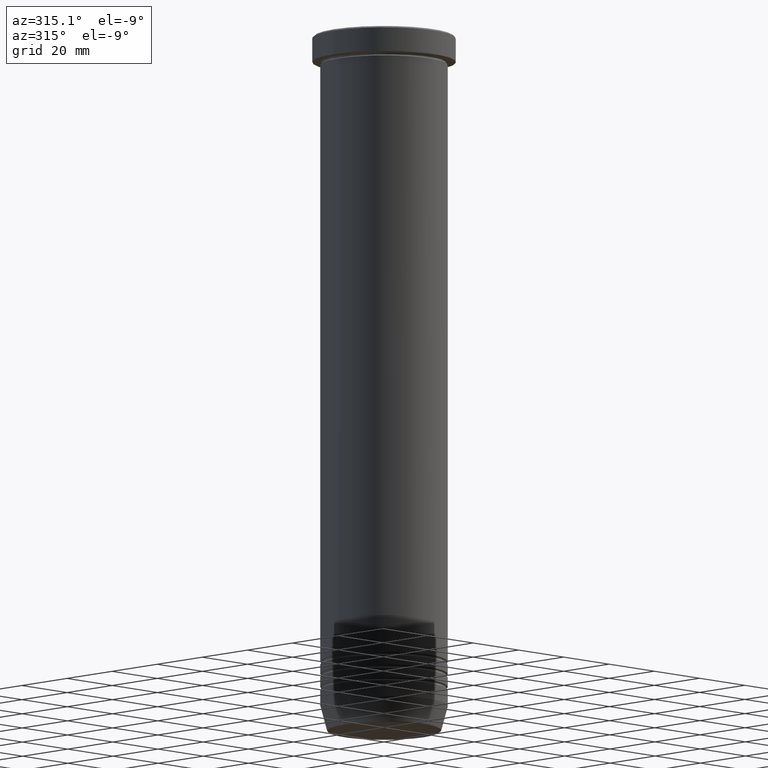
[diagram: clean part render]
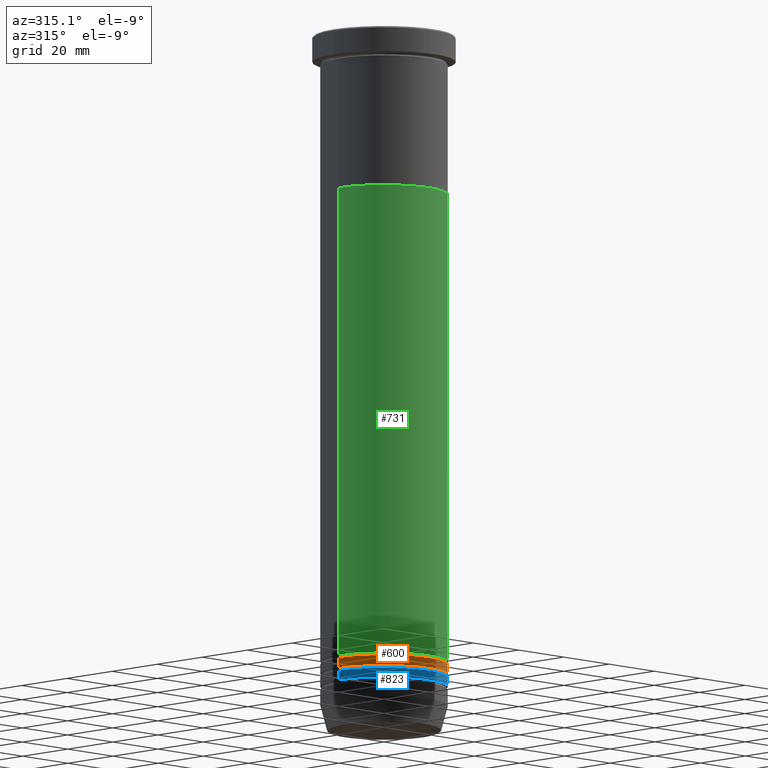
[diagram: same view with three faces highlighted in distinct colors, each labeled with its STEP entity id]
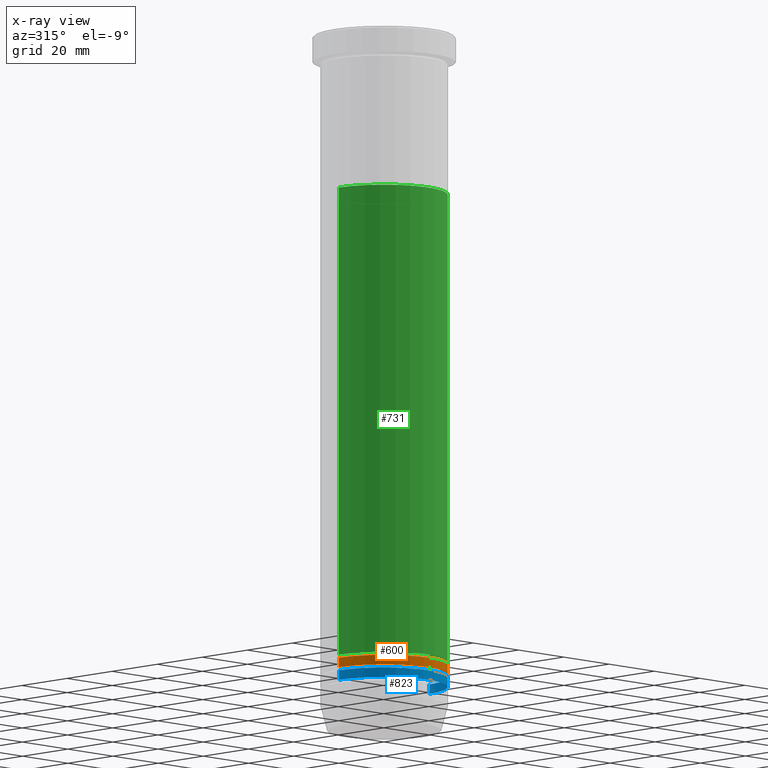
[diagram: x-ray of the same camera — body ghosted, the three highlighted faces saturated]
A machine part, auxiliary view with three faces highlighted in distinct colors.
The next image is the same camera in x-ray (body ghosted, the three faces saturated) — at least one of them is partly hidden behind the body in this view.
Their STEP definitions:

[orange] entity #600 — the highlighted cylindrical surface (partial cylindrical patch) has radius 20 mm, axis along (-0, -0, 1).
#57 = DIRECTION ( 'NONE',  ( -0.000000000000000000, -0.000000000000000000, 1.000000000000000000 ) ) ;
#67 = CARTESIAN_POINT ( 'NONE',  ( 19.99999999999999645, 0.000000000000000000, 0.000000000000000000 ) ) ;
#69 = EDGE_CURVE ( 'NONE', #268, #497, #807, .T. ) ;
#111 = ORIENTED_EDGE ( 'NONE', *, *, #914, .F. ) ;
#113 = CIRCLE ( 'NONE', #311, 20.00000000000000000 ) ;
#119 = DIRECTION ( 'NONE',  ( -0.000000000000000000, -0.000000000000000000, 1.000000000000000000 ) ) ;
#133 = EDGE_CURVE ( 'NONE', #969, #668, #113, .T. ) ;
#161 = CARTESIAN_POINT ( 'NONE',  ( 20.00000000000000000, 0.000000000000000000, -199.0000000000000000 ) ) ;
#175 = CARTESIAN_POINT ( 'NONE',  ( 0.000000000000000000, 0.000000000000000000, -201.9999999999999716 ) ) ;
#221 = FACE_OUTER_BOUND ( 'NONE', #540, .T. ) ;
#248 = ORIENTED_EDGE ( 'NONE', *, *, #133, .F. ) ;
#268 = VERTEX_POINT ( 'NONE', #702 ) ;
#290 = CARTESIAN_POINT ( 'NONE',  ( 0.000000000000000000, 0.000000000000000000, 0.000000000000000000 ) ) ;
#311 = AXIS2_PLACEMENT_3D ( 'NONE', #1017, #119, #512 ) ;
#367 = AXIS2_PLACEMENT_3D ( 'NONE', #290, #544, #452 ) ;
#411 = CARTESIAN_POINT ( 'NONE',  ( 19.99999999999999645, 0.000000000000000000, -201.9999999999999716 ) ) ;
#452 = DIRECTION ( 'NONE',  ( 1.000000000000000000, 0.000000000000000000, 0.000000000000000000 ) ) ;
#472 = VECTOR ( 'NONE', #57, 1000.000000000000000 ) ;
#497 = VERTEX_POINT ( 'NONE', #411 ) ;
#500 = DIRECTION ( 'NONE',  ( -0.000000000000000000, -0.000000000000000000, 1.000000000000000000 ) ) ;
#501 = LINE ( 'NONE', #1001, #669 ) ;
#512 = DIRECTION ( 'NONE',  ( 1.000000000000000000, 0.000000000000000000, 0.000000000000000000 ) ) ;
#534 = AXIS2_PLACEMENT_3D ( 'NONE', #175, #500, #844 ) ;
#540 = EDGE_LOOP ( 'NONE', ( #111, #780, #778, #248 ) ) ;
#544 = DIRECTION ( 'NONE',  ( -0.000000000000000000, -0.000000000000000000, 1.000000000000000000 ) ) ;
#600 = ADVANCED_FACE ( 'NONE', ( #221 ), #617, .T. ) ;
#617 = CYLINDRICAL_SURFACE ( 'NONE', #367, 19.99999999999999645 ) ;
#668 = VERTEX_POINT ( 'NONE', #161 ) ;
#669 = VECTOR ( 'NONE', #846, 1000.000000000000000 ) ;
#702 = CARTESIAN_POINT ( 'NONE',  ( -19.99999999999999645, 2.449293598294706119E-15, -201.9999999999999716 ) ) ;
#707 = CARTESIAN_POINT ( 'NONE',  ( -20.00000000000000000, 2.449293598294706513E-15, -199.0000000000000000 ) ) ;
#778 = ORIENTED_EDGE ( 'NONE', *, *, #957, .T. ) ;
#780 = ORIENTED_EDGE ( 'NONE', *, *, #69, .T. ) ;
#807 = CIRCLE ( 'NONE', #534, 19.99999999999999645 ) ;
#815 = LINE ( 'NONE', #67, #472 ) ;
#844 = DIRECTION ( 'NONE',  ( 1.000000000000000000, 0.000000000000000000, 0.000000000000000000 ) ) ;
#846 = DIRECTION ( 'NONE',  ( -0.000000000000000000, -0.000000000000000000, 1.000000000000000000 ) ) ;
#914 = EDGE_CURVE ( 'NONE', #268, #969, #501, .T. ) ;
#957 = EDGE_CURVE ( 'NONE', #497, #668, #815, .T. ) ;
#969 = VERTEX_POINT ( 'NONE', #707 ) ;
#1001 = CARTESIAN_POINT ( 'NONE',  ( -19.99999999999999645, 2.449293598294706119E-15, 0.000000000000000000 ) ) ;
#1017 = CARTESIAN_POINT ( 'NONE',  ( 0.000000000000000000, 0.000000000000000000, -199.0000000000000000 ) ) ;

[blue] entity #823 — the highlighted cylindrical surface (partial cylindrical patch) has radius 20 mm, axis along (-0, -0, 1).
#3 = VERTEX_POINT ( 'NONE', #493 ) ;
#7 = FACE_OUTER_BOUND ( 'NONE', #415, .T. ) ;
#23 = ORIENTED_EDGE ( 'NONE', *, *, #359, .F. ) ;
#25 = EDGE_CURVE ( 'NONE', #3, #899, #1000, .T. ) ;
#95 = DIRECTION ( 'NONE',  ( -0.000000000000000000, -0.000000000000000000, 1.000000000000000000 ) ) ;
#200 = CIRCLE ( 'NONE', #812, 20.00000000000000000 ) ;
#236 = DIRECTION ( 'NONE',  ( -0.000000000000000000, -0.000000000000000000, 1.000000000000000000 ) ) ;
#244 = AXIS2_PLACEMENT_3D ( 'NONE', #341, #236, #247 ) ;
#247 = DIRECTION ( 'NONE',  ( 1.000000000000000000, 0.000000000000000000, 0.000000000000000000 ) ) ;
#271 = DIRECTION ( 'NONE',  ( 1.000000000000000000, 0.000000000000000000, 0.000000000000000000 ) ) ;
#300 = CARTESIAN_POINT ( 'NONE',  ( -19.99999999999999645, 2.449293598294706119E-15, 0.000000000000000000 ) ) ;
#309 = DIRECTION ( 'NONE',  ( -0.000000000000000000, -0.000000000000000000, 1.000000000000000000 ) ) ;
#333 = AXIS2_PLACEMENT_3D ( 'NONE', #532, #368, #271 ) ;
#341 = CARTESIAN_POINT ( 'NONE',  ( 0.000000000000000000, 0.000000000000000000, 0.000000000000000000 ) ) ;
#359 = EDGE_CURVE ( 'NONE', #982, #917, #706, .T. ) ;
#368 = DIRECTION ( 'NONE',  ( -0.000000000000000000, -0.000000000000000000, 1.000000000000000000 ) ) ;
#383 = CARTESIAN_POINT ( 'NONE',  ( -19.99999999999999289, 2.449293598294705724E-15, -206.0000000000000284 ) ) ;
#415 = EDGE_LOOP ( 'NONE', ( #23, #683, #639, #926 ) ) ;
#493 = CARTESIAN_POINT ( 'NONE',  ( 19.99999999999999289, 0.000000000000000000, -206.0000000000000284 ) ) ;
#532 = CARTESIAN_POINT ( 'NONE',  ( 0.000000000000000000, 0.000000000000000000, -206.0000000000000284 ) ) ;
#564 = CARTESIAN_POINT ( 'NONE',  ( 20.00000000000000000, 0.000000000000000000, -203.0000000000000000 ) ) ;
#578 = CYLINDRICAL_SURFACE ( 'NONE', #244, 19.99999999999999645 ) ;
#639 = ORIENTED_EDGE ( 'NONE', *, *, #25, .T. ) ;
#665 = VECTOR ( 'NONE', #953, 1000.000000000000000 ) ;
#683 = ORIENTED_EDGE ( 'NONE', *, *, #940, .T. ) ;
#706 = LINE ( 'NONE', #300, #665 ) ;
#810 = CIRCLE ( 'NONE', #333, 19.99999999999999289 ) ;
#812 = AXIS2_PLACEMENT_3D ( 'NONE', #893, #309, #1045 ) ;
#823 = ADVANCED_FACE ( 'NONE', ( #7 ), #578, .T. ) ;
#893 = CARTESIAN_POINT ( 'NONE',  ( 0.000000000000000000, 0.000000000000000000, -203.0000000000000000 ) ) ;
#899 = VERTEX_POINT ( 'NONE', #564 ) ;
#915 = CARTESIAN_POINT ( 'NONE',  ( 19.99999999999999645, 0.000000000000000000, 0.000000000000000000 ) ) ;
#916 = CARTESIAN_POINT ( 'NONE',  ( -20.00000000000000000, 2.449293598294706513E-15, -203.0000000000000000 ) ) ;
#917 = VERTEX_POINT ( 'NONE', #916 ) ;
#926 = ORIENTED_EDGE ( 'NONE', *, *, #984, .F. ) ;
#940 = EDGE_CURVE ( 'NONE', #982, #3, #810, .T. ) ;
#953 = DIRECTION ( 'NONE',  ( -0.000000000000000000, -0.000000000000000000, 1.000000000000000000 ) ) ;
#982 = VERTEX_POINT ( 'NONE', #383 ) ;
#984 = EDGE_CURVE ( 'NONE', #917, #899, #200, .T. ) ;
#1000 = LINE ( 'NONE', #915, #1046 ) ;
#1045 = DIRECTION ( 'NONE',  ( 1.000000000000000000, 0.000000000000000000, 0.000000000000000000 ) ) ;
#1046 = VECTOR ( 'NONE', #95, 1000.000000000000000 ) ;

[green] entity #731 — the highlighted cylindrical surface (partial cylindrical patch) has radius 20 mm, axis along (-0, -0, 1).
#6 = DIRECTION ( 'NONE',  ( 1.000000000000000000, 0.000000000000000000, 0.000000000000000000 ) ) ;
#20 = CYLINDRICAL_SURFACE ( 'NONE', #1019, 19.99999999999999645 ) ;
#37 = EDGE_CURVE ( 'NONE', #789, #475, #396, .T. ) ;
#61 = ORIENTED_EDGE ( 'NONE', *, *, #561, .T. ) ;
#86 = EDGE_CURVE ( 'NONE', #380, #789, #992, .T. ) ;
#102 = CARTESIAN_POINT ( 'NONE',  ( -19.99999999999999645, 2.449293598294706119E-15, 0.000000000000000000 ) ) ;
#149 = ORIENTED_EDGE ( 'NONE', *, *, #86, .F. ) ;
#164 = CARTESIAN_POINT ( 'NONE',  ( 0.000000000000000000, 0.000000000000000000, -50.00000000000000000 ) ) ;
#167 = CARTESIAN_POINT ( 'NONE',  ( 20.00000000000000000, 0.000000000000000000, -50.00000000000000000 ) ) ;
#184 = DIRECTION ( 'NONE',  ( -0.000000000000000000, -0.000000000000000000, 1.000000000000000000 ) ) ;
#197 = AXIS2_PLACEMENT_3D ( 'NONE', #1050, #792, #363 ) ;
#240 = LINE ( 'NONE', #753, #700 ) ;
#325 = VERTEX_POINT ( 'NONE', #460 ) ;
#338 = CARTESIAN_POINT ( 'NONE',  ( 0.000000000000000000, 0.000000000000000000, 0.000000000000000000 ) ) ;
#363 = DIRECTION ( 'NONE',  ( 1.000000000000000000, 0.000000000000000000, 0.000000000000000000 ) ) ;
#380 = VERTEX_POINT ( 'NONE', #979 ) ;
#396 = CIRCLE ( 'NONE', #697, 20.00000000000000000 ) ;
#403 = DIRECTION ( 'NONE',  ( -0.000000000000000000, -0.000000000000000000, 1.000000000000000000 ) ) ;
#437 = EDGE_LOOP ( 'NONE', ( #149, #61, #988, #863 ) ) ;
#460 = CARTESIAN_POINT ( 'NONE',  ( 19.99999999999999289, 0.000000000000000000, -198.0000000000000000 ) ) ;
#475 = VERTEX_POINT ( 'NONE', #167 ) ;
#561 = EDGE_CURVE ( 'NONE', #380, #325, #977, .T. ) ;
#672 = DIRECTION ( 'NONE',  ( -0.000000000000000000, -0.000000000000000000, 1.000000000000000000 ) ) ;
#680 = VECTOR ( 'NONE', #762, 1000.000000000000000 ) ;
#697 = AXIS2_PLACEMENT_3D ( 'NONE', #164, #403, #6 ) ;
#700 = VECTOR ( 'NONE', #184, 1000.000000000000000 ) ;
#731 = ADVANCED_FACE ( 'NONE', ( #757 ), #20, .T. ) ;
#753 = CARTESIAN_POINT ( 'NONE',  ( 19.99999999999999645, 0.000000000000000000, 0.000000000000000000 ) ) ;
#757 = FACE_OUTER_BOUND ( 'NONE', #437, .T. ) ;
#762 = DIRECTION ( 'NONE',  ( -0.000000000000000000, -0.000000000000000000, 1.000000000000000000 ) ) ;
#789 = VERTEX_POINT ( 'NONE', #973 ) ;
#792 = DIRECTION ( 'NONE',  ( -0.000000000000000000, -0.000000000000000000, 1.000000000000000000 ) ) ;
#852 = EDGE_CURVE ( 'NONE', #325, #475, #240, .T. ) ;
#863 = ORIENTED_EDGE ( 'NONE', *, *, #37, .F. ) ;
#973 = CARTESIAN_POINT ( 'NONE',  ( -20.00000000000000000, 2.449293598294706513E-15, -50.00000000000000000 ) ) ;
#977 = CIRCLE ( 'NONE', #197, 19.99999999999999289 ) ;
#979 = CARTESIAN_POINT ( 'NONE',  ( -19.99999999999999289, 2.449293598294705724E-15, -198.0000000000000000 ) ) ;
#988 = ORIENTED_EDGE ( 'NONE', *, *, #852, .T. ) ;
#992 = LINE ( 'NONE', #102, #680 ) ;
#1010 = DIRECTION ( 'NONE',  ( 1.000000000000000000, 0.000000000000000000, 0.000000000000000000 ) ) ;
#1019 = AXIS2_PLACEMENT_3D ( 'NONE', #338, #672, #1010 ) ;
#1050 = CARTESIAN_POINT ( 'NONE',  ( 0.000000000000000000, 0.000000000000000000, -198.0000000000000000 ) ) ;